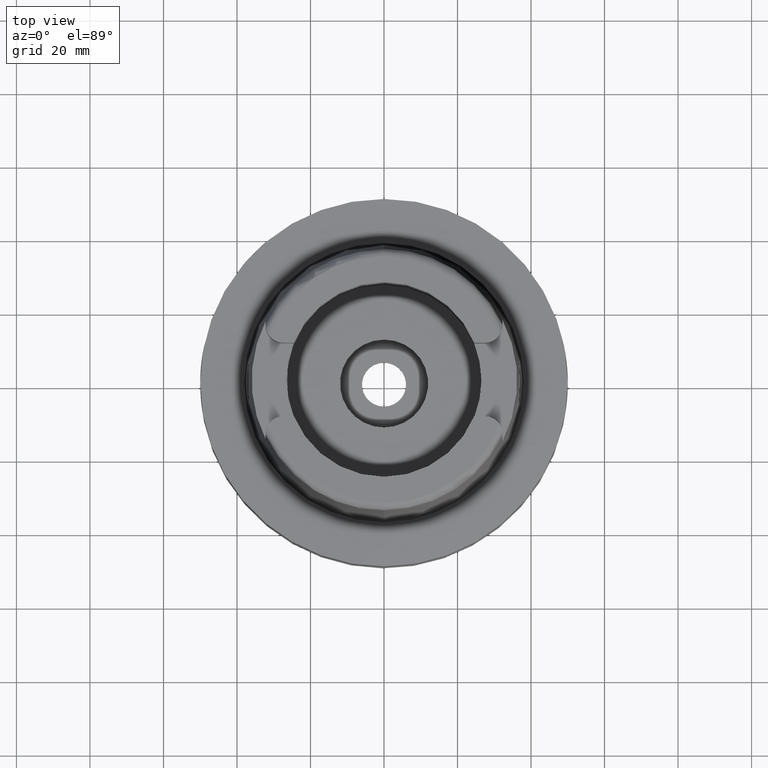
[diagram: clean part render]
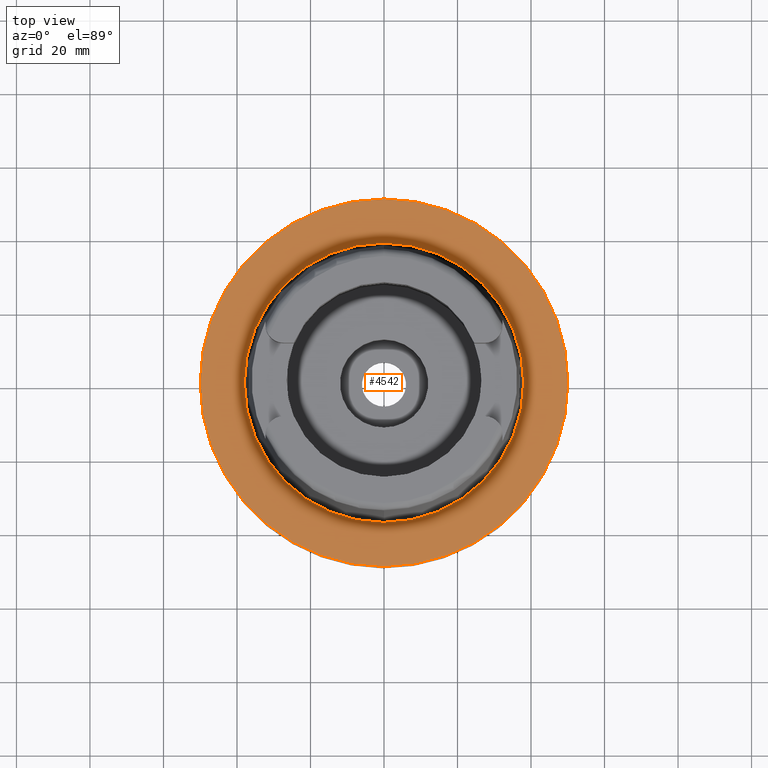
[diagram: same view with one face highlighted and labeled with its STEP entity id]
A machine part, top view. The second image highlights one B-rep face of the part: STEP entity #4542.
In plain terms, the highlighted planar face has unit normal (0, 0, 1).
Its self-contained STEP definition (entity closure, byte-faithful):
#36 = CARTESIAN_POINT ( 'NONE',  ( 0.0000000000000000000, 0.0000000000000000000, 1.023181539494999863E-12 ) ) ;
#124 = ORIENTED_EDGE ( 'NONE', *, *, #4741, .F. ) ;
#547 = EDGE_LOOP ( 'NONE', ( #124, #4733 ) ) ;
#974 = DIRECTION ( 'NONE',  ( 0.0000000000000000000, 0.0000000000000000000, -1.000000000000000000 ) ) ;
#986 = DIRECTION ( 'NONE',  ( 0.0000000000000000000, 0.0000000000000000000, -1.000000000000000000 ) ) ;
#1417 = CIRCLE ( 'NONE', #5880, 38.00001658251999714 ) ;
#1618 = PLANE ( 'NONE',  #2795 ) ;
#1669 = CARTESIAN_POINT ( 'NONE',  ( 0.0000000000000000000, 50.00000000000000000, 1.752672081541999838E-13 ) ) ;
#1716 = CARTESIAN_POINT ( 'NONE',  ( 0.0000000000000000000, 38.00001658251999714, 1.023181539494999863E-12 ) ) ;
#1723 = CARTESIAN_POINT ( 'NONE',  ( 0.0000000000000000000, -50.00000000000000000, 3.126388037344000570E-13 ) ) ;
#2002 = EDGE_CURVE ( 'NONE', #5422, #4005, #5699, .T. ) ;
#2027 = DIRECTION ( 'NONE',  ( 0.0000000000000000000, 0.0000000000000000000, 1.000000000000000000 ) ) ;
#2576 = FACE_OUTER_BOUND ( 'NONE', #547, .T. ) ;
#2795 = AXIS2_PLACEMENT_3D ( 'NONE', #3880, #2027, #4376 ) ;
#2880 = DIRECTION ( 'NONE',  ( 0.0000000000000000000, 1.000000000000000000, 0.0000000000000000000 ) ) ;
#3017 = AXIS2_PLACEMENT_3D ( 'NONE', #4379, #974, #5197 ) ;
#3445 = EDGE_CURVE ( 'NONE', #4230, #5876, #4272, .T. ) ;
#3715 = EDGE_LOOP ( 'NONE', ( #4496, #5402 ) ) ;
#3780 = CIRCLE ( 'NONE', #4575, 50.00000000000000000 ) ;
#3866 = CARTESIAN_POINT ( 'NONE',  ( 0.0000000000000000000, 0.0000000000000000000, 3.126388037344000570E-13 ) ) ;
#3880 = CARTESIAN_POINT ( 'NONE',  ( 0.0000000000000000000, 0.0000000000000000000, 1.421085471519999843E-14 ) ) ;
#4005 = VERTEX_POINT ( 'NONE', #1669 ) ;
#4076 = CARTESIAN_POINT ( 'NONE',  ( 0.0000000000000000000, -38.00001658251999714, 6.892264536873000076E-13 ) ) ;
#4230 = VERTEX_POINT ( 'NONE', #4076 ) ;
#4272 = CIRCLE ( 'NONE', #5456, 38.00001658251999714 ) ;
#4376 = DIRECTION ( 'NONE',  ( 1.000000000000000000, 0.0000000000000000000, 0.0000000000000000000 ) ) ;
#4379 = CARTESIAN_POINT ( 'NONE',  ( 0.0000000000000000000, 0.0000000000000000000, 3.126388037344000570E-13 ) ) ;
#4496 = ORIENTED_EDGE ( 'NONE', *, *, #4945, .F. ) ;
#4542 = ADVANCED_FACE ( 'NONE', ( #2576, #4879 ), #1618, .T. ) ;
#4575 = AXIS2_PLACEMENT_3D ( 'NONE', #3866, #986, #2880 ) ;
#4733 = ORIENTED_EDGE ( 'NONE', *, *, #2002, .F. ) ;
#4741 = EDGE_CURVE ( 'NONE', #4005, #5422, #3780, .T. ) ;
#4879 = FACE_BOUND ( 'NONE', #3715, .T. ) ;
#4945 = EDGE_CURVE ( 'NONE', #5876, #4230, #1417, .T. ) ;
#5197 = DIRECTION ( 'NONE',  ( 0.0000000000000000000, -1.000000000000000000, 0.0000000000000000000 ) ) ;
#5325 = DIRECTION ( 'NONE',  ( 0.0000000000000000000, 0.0000000000000000000, 1.000000000000000000 ) ) ;
#5402 = ORIENTED_EDGE ( 'NONE', *, *, #3445, .F. ) ;
#5422 = VERTEX_POINT ( 'NONE', #1723 ) ;
#5456 = AXIS2_PLACEMENT_3D ( 'NONE', #36, #5693, #6067 ) ;
#5673 = DIRECTION ( 'NONE',  ( 0.0000000000000000000, 1.000000000000000000, 0.0000000000000000000 ) ) ;
#5693 = DIRECTION ( 'NONE',  ( 0.0000000000000000000, 0.0000000000000000000, 1.000000000000000000 ) ) ;
#5699 = CIRCLE ( 'NONE', #3017, 50.00000000000000000 ) ;
#5876 = VERTEX_POINT ( 'NONE', #1716 ) ;
#5880 = AXIS2_PLACEMENT_3D ( 'NONE', #6049, #5325, #5673 ) ;
#6049 = CARTESIAN_POINT ( 'NONE',  ( 0.0000000000000000000, 0.0000000000000000000, 1.023181539494999863E-12 ) ) ;
#6067 = DIRECTION ( 'NONE',  ( 0.0000000000000000000, -1.000000000000000000, 0.0000000000000000000 ) ) ;